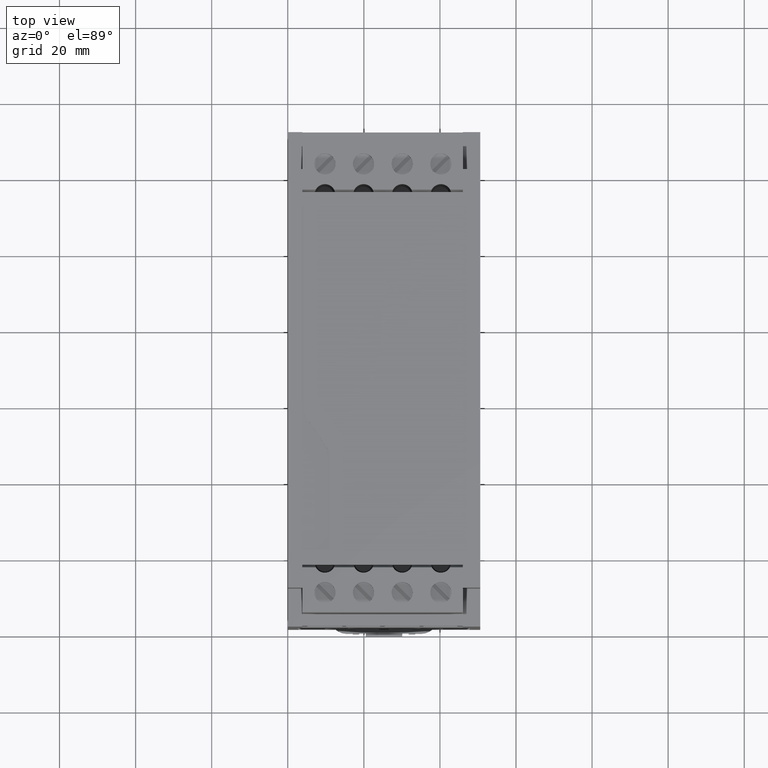
[diagram: clean part render]
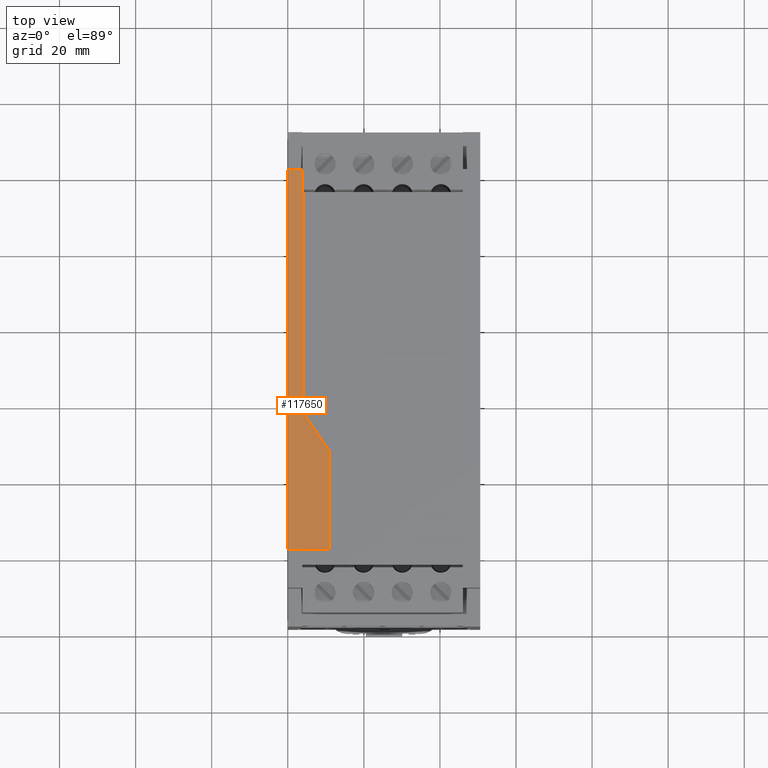
[diagram: same view with one face highlighted and labeled with its STEP entity id]
A machine part, top view. The second image highlights one B-rep face of the part: STEP entity #117650.
In plain terms, the highlighted planar face has unit normal (0, 0, 1).
Its self-contained STEP definition (entity closure, byte-faithful):
#4590=CARTESIAN_POINT('',(0.,143.9,-97.));
#4600=DIRECTION('',(1.,0.,0.));
#4610=VECTOR('',#4600,1.);
#4620=LINE('',#4590,#4610);
#4630=CARTESIAN_POINT('',(-25.,143.9,-97.));
#4640=VERTEX_POINT('',#4630);
#4650=CARTESIAN_POINT('',(-21.2,143.9,-97.));
#4660=VERTEX_POINT('',#4650);
#4670=EDGE_CURVE('',#4640,#4660,#4620,.T.);
#15430=CARTESIAN_POINT('',(-21.2,143.9,-91.6307804387352));
#15440=VERTEX_POINT('',#15430);
#16480=CARTESIAN_POINT('',(-20.9403514812822,143.9,-91.));
#16490=VERTEX_POINT('',#16480);
#16520=CARTESIAN_POINT('',(0.,143.9,-91.));
#16530=DIRECTION('',(1.,0.,0.));
#16540=VECTOR('',#16530,1.);
#16550=LINE('',#16520,#16540);
#16560=CARTESIAN_POINT('',(-21.2,143.9,-91.));
#16570=VERTEX_POINT('',#16560);
#16580=EDGE_CURVE('',#16570,#16490,#16550,.T.);
#20800=CARTESIAN_POINT('',(-21.2,143.9,0.));
#20810=DIRECTION('',(0.,0.,1.));
#20820=VECTOR('',#20810,1.);
#20830=LINE('',#20800,#20820);
#20840=EDGE_CURVE('',#4660,#15440,#20830,.T.);
#21680=CARTESIAN_POINT('',(-21.2,143.9,0.));
#21690=DIRECTION('',(0.,0.,1.));
#21700=VECTOR('',#21690,1.);
#21710=LINE('',#21680,#21700);
#21720=EDGE_CURVE('',#15440,#16570,#21710,.T.);
#94080=CARTESIAN_POINT('',(-25.,143.9,0.));
#94090=DIRECTION('',(0.,0.,-1.));
#94100=VECTOR('',#94090,1.);
#94110=LINE('',#94080,#94100);
#94120=CARTESIAN_POINT('',(-25.,143.9,3.));
#94130=VERTEX_POINT('',#94120);
#94140=EDGE_CURVE('',#94130,#4640,#94110,.T.);
#111570=CARTESIAN_POINT('',(-14.0578429961842,143.9,-22.8906489900334));
#111580=VERTEX_POINT('',#111570);
#111610=CARTESIAN_POINT('',(1.68811179453307,143.9,0.));
#111620=DIRECTION('',(-0.566739815640568,0.,-0.823896826895028));
#111630=VECTOR('',#111620,1.);
#111640=LINE('',#111610,#111630);
#111650=CARTESIAN_POINT('',(-20.9403514812822,143.9,-32.8960813691601));
#111660=VERTEX_POINT('',#111650);
#111670=EDGE_CURVE('',#111580,#111660,#111640,.T.);
#115670=CARTESIAN_POINT('',(-14.0578429961842,143.9,3.));
#115680=VERTEX_POINT('',#115670);
#115710=CARTESIAN_POINT('',(-14.0578429961842,143.9,0.));
#115720=DIRECTION('',(0.,0.,-1.));
#115730=VECTOR('',#115720,1.);
#115740=LINE('',#115710,#115730);
#115750=EDGE_CURVE('',#115680,#111580,#115740,.T.);
#117390=CARTESIAN_POINT('',(-25.2924539250954,143.9,5.5189));
#117400=DIRECTION('',(-0.,1.,0.));
#117410=DIRECTION('',(1.,0.,0.));
#117420=AXIS2_PLACEMENT_3D('',#117390,#117400,#117410);
#117430=PLANE('',#117420);
#117440=ORIENTED_EDGE('',*,*,#21720,.F.);
#117450=ORIENTED_EDGE('',*,*,#16580,.F.);
#117460=CARTESIAN_POINT('',(-20.9403514812822,143.9,0.));
#117470=DIRECTION('',(0.,0.,-1.));
#117480=VECTOR('',#117470,1.);
#117490=LINE('',#117460,#117480);
#117500=EDGE_CURVE('',#111660,#16490,#117490,.T.);
#117510=ORIENTED_EDGE('',*,*,#117500,.T.);
#117520=ORIENTED_EDGE('',*,*,#111670,.T.);
#117530=ORIENTED_EDGE('',*,*,#115750,.T.);
#117540=CARTESIAN_POINT('',(0.,143.9,3.));
#117550=DIRECTION('',(1.,0.,0.));
#117560=VECTOR('',#117550,1.);
#117570=LINE('',#117540,#117560);
#117580=EDGE_CURVE('',#94130,#115680,#117570,.T.);
#117590=ORIENTED_EDGE('',*,*,#117580,.T.);
#117600=ORIENTED_EDGE('',*,*,#94140,.F.);
#117610=ORIENTED_EDGE('',*,*,#4670,.F.);
#117620=ORIENTED_EDGE('',*,*,#20840,.F.);
#117630=EDGE_LOOP('',(#117620,#117610,#117600,#117590,#117530,#117520,
#117510,#117450,#117440));
#117640=FACE_OUTER_BOUND('',#117630,.T.);
#117650=ADVANCED_FACE('',(#117640),#117430,.T.);